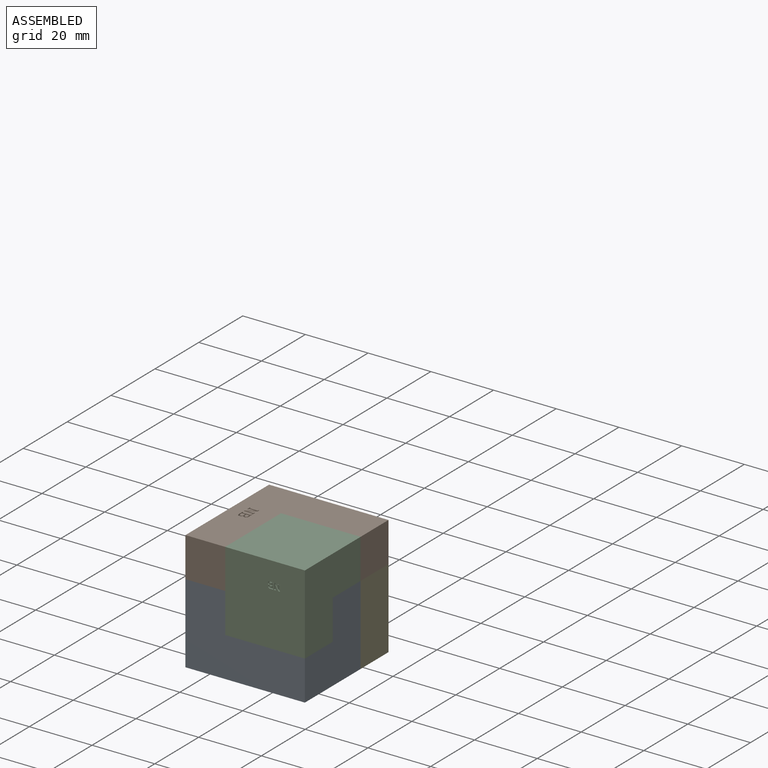
[diagram: assembled view]
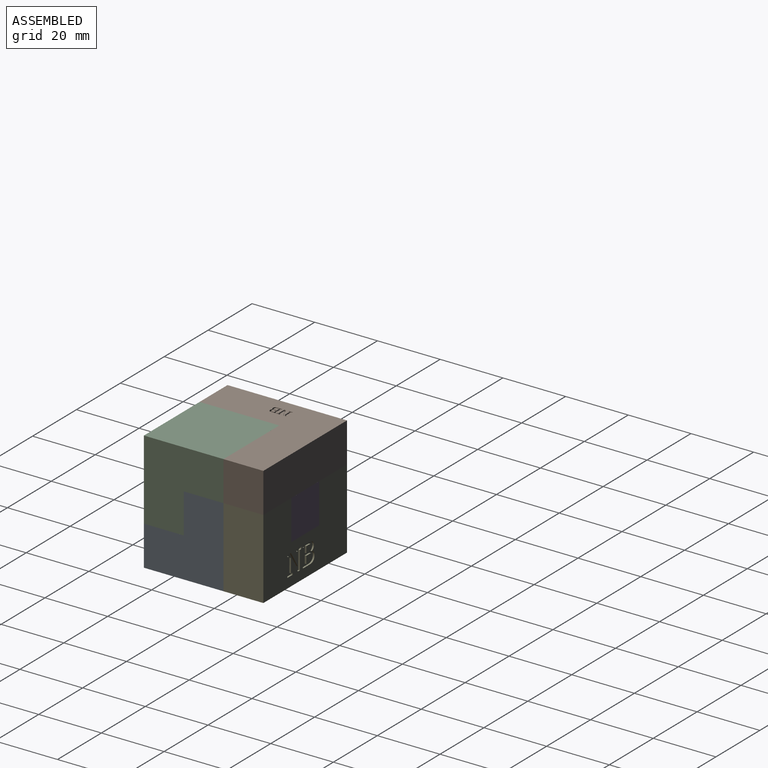
[diagram: assembled view, second angle]
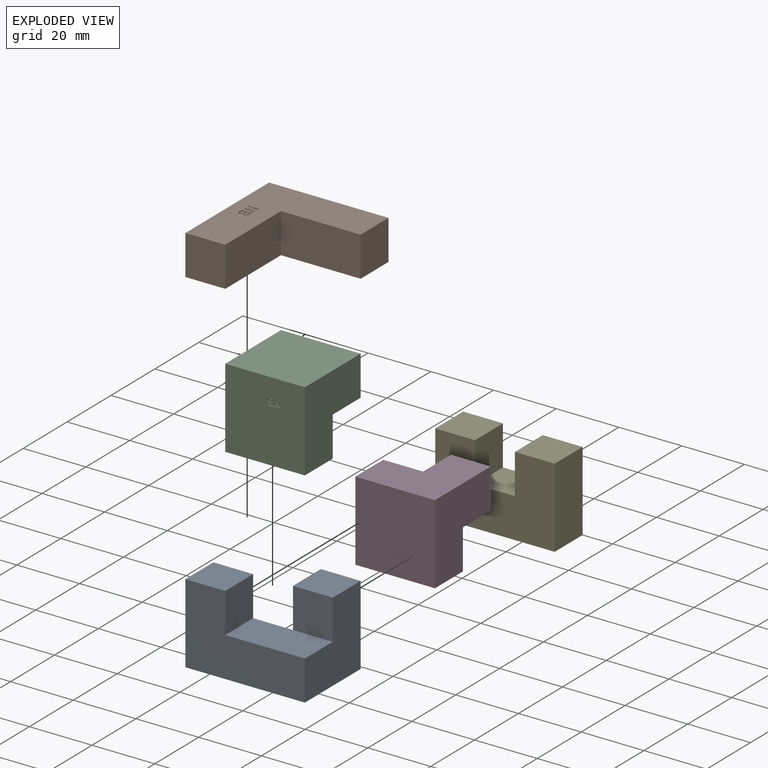
[diagram: exploded view]
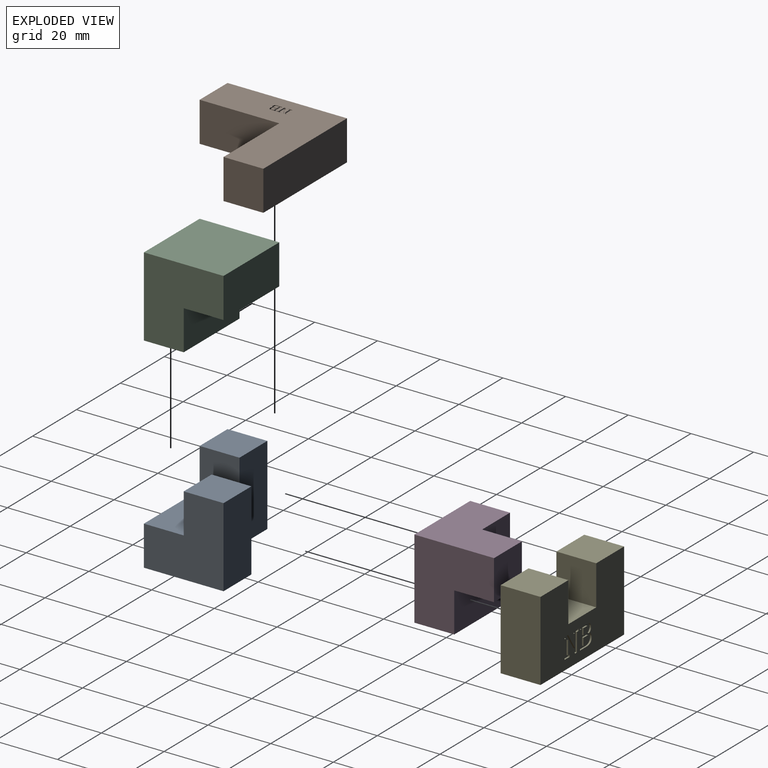
[diagram: exploded view, second angle]
ASSEMBLY  parts=5 mates=4
PART A: 67 faces, bbox 38.1x25.4x25.4 mm
  f0: plane 38.1x25.4mm, normal (0,0,-1), area 616.4mm2, adj f2,f3,f4,f5,f6,f7,f24,f25
  f1: plane 25.4x12.7mm, normal (0,0,1), area 322.6mm2, adj f2,f5,f7,f8,f10
  f2: plane 25.4x25.4mm, normal (1,0,0), area 483.9mm2, adj f0,f1,f3,f7,f10,f11
  f3: plane 25.4x12.7mm, normal (0,1,0), area 322.6mm2, adj f0,f2,f4,f11
  f4: plane 25.4x12.7mm, normal (-1,0,0), area 322.6mm2, adj f0,f3,f5,f10,f11
  f5: plane 25.4x25.4mm, normal (0,1,0), area 483.9mm2, adj f0,f1,f4,f6,f8,f9
  f6: plane 25.4x12.7mm, normal (-1,0,0), area 322.6mm2, adj f0,f5,f7,f9
  f7: plane 38.1x25.4mm, normal (0,-1,0), area 645.2mm2, adj f0,f1,f2,f6,f8,f9
  f8: plane 12.7x12.7mm, normal (1,0,0), area 161.3mm2, adj f1,f5,f7,f9
  f9: plane 12.7x12.7mm, normal (0,0,1), area 161.3mm2, adj f5,f6,f7,f8
  f10: plane 12.7x12.7mm, normal (0,-1,0), area 161.3mm2, adj f1,f2,f4,f11
  f11: plane 12.7x12.7mm, normal (0,0,1), area 161.3mm2, adj f2,f3,f4,f10
  f12: plane 1.16x0.5mm, normal (0,1,0), area 0.6mm2, adj f13,f40,f41,f66
  f13: plane 1.64x0.5mm, normal (-1,0,0), area 0.8mm2, adj f12,f14,f41,f66
  f14: plane 0.98x0.5mm, normal (0,-1,0), area 0.5mm2, adj f13,f15,f41,f66
  f15: extruded ~0.76x0.5mm, area 0.4mm2, adj f14,f16,f41,f66
  f16: extruded ~0.63x0.5mm, area 0.4mm2, adj f15,f17,f41,f66
  f17: extruded ~0.59x0.5mm, area 0.3mm2, adj f16,f40,f41,f66
  f18: plane 1.87x0.5mm, normal (-1,0,0), area 0.9mm2, adj f19,f38,f41,f42
  f19: plane 1.31x0.5mm, normal (0,-1,0), area 0.7mm2, adj f18,f20,f41,f42
  f20: extruded ~0.68x0.5mm, area 0.4mm2, adj f19,f21,f41,f42
  f21: extruded ~0.71x0.5mm, area 0.4mm2, adj f20,f22,f41,f42
  f22: extruded ~0.67x0.5mm, area 0.4mm2, adj f21,f23,f41,f42
  f23: extruded ~0.74x0.5mm, area 0.4mm2, adj f22,f38,f41,f42
  f24: extruded ~1.26x0.5mm, area 0.7mm2, adj f0,f25,f39,f41
  f25: plane 2.26x0.5mm, normal (0,1,0), area 1.1mm2, adj f0,f24,f26,f41
  f26: plane 0.5x0.45mm, normal (1,0,0), area 0.2mm2, adj f0,f25,f27,f41
  f27: plane 0.58x0.5mm, normal (0.17,-0.99,0), area 0.3mm2, adj f0,f26,f28,f41
  f28: plane 4.06x0.5mm, normal (1,0,0), area 2mm2, adj f0,f27,f29,f41
  f29: plane 0.58x0.5mm, normal (0.17,0.99,0), area 0.3mm2, adj f0,f28,f30,f41
  f30: plane 0.5x0.45mm, normal (1,0,0), area 0.2mm2, adj f0,f29,f31,f41
  f31: plane 2.48x0.5mm, normal (0,-1,0), area 1.2mm2, adj f0,f30,f32,f41
  f32: extruded ~1.25x0.5mm, area 0.7mm2, adj f0,f31,f33,f41
  f33: extruded ~1.08x0.5mm, area 0.6mm2, adj f0,f32,f34,f41
  f34: extruded ~0.83x0.5mm, area 0.4mm2, adj f0,f33,f35,f41
  f35: extruded ~0.73x0.5mm, area 0.4mm2, adj f0,f34,f36,f41
  f36: extruded ~0.58x0.5mm, area 0.4mm2, adj f0,f35,f37,f41
  f37: extruded ~0.61x0.5mm, area 0.3mm2, adj f0,f36,f39,f41
  f38: plane 1.2x0.5mm, normal (0,1,0), area 0.6mm2, adj f18,f23,f41,f42
  f39: extruded ~1.05x0.5mm, area 0.6mm2, adj f0,f24,f37,f41
  f40: extruded ~0.61x0.5mm, area 0.3mm2, adj f12,f17,f41,f66
  f41: plane 5.15x4.18mm, normal (0,0,-1), area 10.4mm2, adj f12,f13,f14,f15,f16,f17,f18,f19
  f42: plane 2.21x1.87mm, normal (0,0,-1), area 3.8mm2, adj f18,f19,f20,f21,f22,f23,f38
  f43: plane 0.5x0.45mm, normal (-1,0,0), area 0.2mm2, adj f0,f44,f64,f65
  f44: plane 1.85x0.5mm, normal (0,1,0), area 0.9mm2, adj f0,f43,f45,f65
  f45: plane 0.5x0.45mm, normal (1,0,0), area 0.2mm2, adj f0,f44,f46,f65
  f46: plane 0.58x0.5mm, normal (0.17,-0.99,0), area 0.3mm2, adj f0,f45,f47,f65
  f47: plane 3.42x0.5mm, normal (1,0,0), area 1.7mm2, adj f0,f46,f48,f65
  f48: plane 0.5x0.02mm, normal (0.3,0.95,0), area 0mm2, adj f0,f47,f49,f65
  f49: plane 3.97x2.48mm, normal (-0.85,0.53,0), area 2.3mm2, adj f0,f48,f50,f65
  f50: plane 1.27x0.5mm, normal (0,1,0), area 0.6mm2, adj f0,f49,f51,f65
  f51: plane 0.5x0.45mm, normal (1,0,0), area 0.2mm2, adj f0,f50,f52,f65
  f52: plane 0.58x0.5mm, normal (0.17,-0.99,0), area 0.3mm2, adj f0,f51,f53,f65
  f53: plane 4.06x0.5mm, normal (1,0,0), area 2mm2, adj f0,f52,f54,f65
  f54: plane 0.58x0.5mm, normal (0.17,0.99,0), area 0.3mm2, adj f0,f53,f55,f65
  f55: plane 0.5x0.45mm, normal (1,0,0), area 0.2mm2, adj f0,f54,f56,f65
  f56: plane 1.85x0.5mm, normal (0,-1,0), area 0.9mm2, adj f0,f55,f57,f65
  f57: plane 0.5x0.45mm, normal (-1,0,0), area 0.2mm2, adj f0,f56,f58,f65
  f58: plane 0.58x0.5mm, normal (-0.17,0.99,0), area 0.3mm2, adj f0,f57,f59,f65
  f59: plane 3.42x0.5mm, normal (-1,0,0), area 1.7mm2, adj f0,f58,f60,f65
  f60: plane 0.5x0.02mm, normal (-0.35,-0.94,0), area 0mm2, adj f0,f59,f61,f65
  f61: plane 3.98x2.48mm, normal (0.85,-0.53,0), area 2.3mm2, adj f0,f60,f62,f65
  f62: plane 0.7x0.5mm, normal (0,-1,0), area 0.3mm2, adj f0,f61,f63,f65
  f63: plane 4.6x0.5mm, normal (-1,0,0), area 2.3mm2, adj f0,f62,f64,f65
  f64: plane 0.58x0.5mm, normal (-0.17,-0.99,0), area 0.3mm2, adj f0,f43,f63,f65
  f65: plane 5.15x5.04mm, normal (0,0,-1), area 11.5mm2, adj f43,f44,f45,f46,f47,f48,f49,f50
  f66: plane 2x1.64mm, normal (0,0,-1), area 3mm2, adj f12,f13,f14,f15,f16,f17,f40
PART B: 63 faces, bbox 38.1x38.1x12.7 mm
  f0: plane 38.1x38.1mm, normal (0,0,1), area 796.3mm2, adj f1,f2,f3,f4,f5,f6,f20,f21
  f1: plane 25.4x12.7mm, normal (0,1,0), area 322.6mm2, adj f0,f2,f6,f7
  f2: plane 25.4x12.7mm, normal (1,0,0), area 322.6mm2, adj f0,f1,f3,f7
  f3: plane 12.7x12.7mm, normal (0,1,0), area 161.3mm2, adj f0,f2,f4,f7
  f4: plane 38.1x12.7mm, normal (-1,0,0), area 483.9mm2, adj f0,f3,f5,f7
  f5: plane 38.1x12.7mm, normal (0,-1,0), area 483.9mm2, adj f0,f4,f6,f7
  f6: plane 12.7x12.7mm, normal (1,0,0), area 161.3mm2, adj f0,f1,f5,f7
  f7: plane 38.1x38.1mm, normal (0,0,-1), area 806.5mm2, adj f1,f2,f3,f4,f5,f6
  f8: plane 0.69x0.5mm, normal (0,-1,0), area 0.3mm2, adj f9,f36,f37,f62
  f9: plane 0.98x0.5mm, normal (-1,0,0), area 0.5mm2, adj f8,f10,f37,f62
  f10: plane 0.59x0.5mm, normal (0,1,0), area 0.3mm2, adj f9,f11,f37,f62
  f11: extruded ~0.5x0.45mm, area 0.2mm2, adj f10,f12,f37,f62
  f12: extruded ~0.5x0.37mm, area 0.2mm2, adj f11,f13,f37,f62
  f13: extruded ~0.5x0.35mm, area 0.2mm2, adj f12,f36,f37,f62
  f14: plane 1.11x0.5mm, normal (-1,0,0), area 0.6mm2, adj f15,f34,f37,f38
  f15: plane 0.78x0.5mm, normal (0,1,0), area 0.4mm2, adj f14,f16,f37,f38
  f16: extruded ~0.5x0.4mm, area 0.2mm2, adj f15,f17,f37,f38
  f17: extruded ~0.5x0.42mm, area 0.2mm2, adj f16,f18,f37,f38
  f18: extruded ~0.5x0.4mm, area 0.2mm2, adj f17,f19,f37,f38
  f19: extruded ~0.5x0.44mm, area 0.2mm2, adj f18,f34,f37,f38
  f20: extruded ~0.75x0.5mm, area 0.4mm2, adj f0,f21,f35,f37
  f21: plane 1.34x0.5mm, normal (0,-1,0), area 0.7mm2, adj f0,f20,f22,f37
  f22: plane 0.5x0.27mm, normal (1,0,0), area 0.1mm2, adj f0,f21,f23,f37
  f23: plane 0.5x0.34mm, normal (0.17,0.99,0), area 0.2mm2, adj f0,f22,f24,f37
  f24: plane 2.42x0.5mm, normal (1,0,0), area 1.2mm2, adj f0,f23,f25,f37
  f25: plane 0.5x0.34mm, normal (0.17,-0.99,0), area 0.2mm2, adj f0,f24,f26,f37
  f26: plane 0.5x0.27mm, normal (1,0,0), area 0.1mm2, adj f0,f25,f27,f37
  f27: plane 1.47x0.5mm, normal (0,1,0), area 0.7mm2, adj f0,f26,f28,f37
  f28: extruded ~0.74x0.5mm, area 0.4mm2, adj f0,f27,f29,f37
  f29: extruded ~0.64x0.5mm, area 0.4mm2, adj f0,f28,f30,f37
  f30: extruded ~0.5x0.5mm, area 0.3mm2, adj f0,f29,f31,f37
  f31: extruded ~0.5x0.44mm, area 0.3mm2, adj f0,f30,f32,f37
  f32: extruded ~0.5x0.34mm, area 0.2mm2, adj f0,f31,f33,f37
  f33: extruded ~0.5x0.37mm, area 0.2mm2, adj f0,f32,f35,f37
  f34: plane 0.72x0.5mm, normal (0,-1,0), area 0.4mm2, adj f14,f19,f37,f38
  f35: extruded ~0.62x0.5mm, area 0.4mm2, adj f0,f20,f33,f37
  f36: extruded ~0.5x0.36mm, area 0.2mm2, adj f8,f13,f37,f62
  f37: plane 3.07x2.49mm, normal (0,0,1), area 3.7mm2, adj f8,f9,f10,f11,f12,f13,f14,f15
  f38: plane 1.31x1.11mm, normal (0,0,1), area 1.4mm2, adj f14,f15,f16,f17,f18,f19,f34
  f39: plane 0.5x0.27mm, normal (-1,0,0), area 0.1mm2, adj f0,f40,f60,f61
  f40: plane 1.1x0.5mm, normal (0,-1,0), area 0.6mm2, adj f0,f39,f41,f61
  f41: plane 0.5x0.27mm, normal (1,0,0), area 0.1mm2, adj f0,f40,f42,f61
  f42: plane 0.5x0.34mm, normal (0.17,0.99,0), area 0.2mm2, adj f0,f41,f43,f61
  f43: plane 2.03x0.5mm, normal (1,0,0), area 1mm2, adj f0,f42,f44,f61
  f44: plane 0.5x0.01mm, normal (0.3,-0.95,0), area 0mm2, adj f0,f43,f45,f61
  f45: plane 2.36x1.47mm, normal (-0.85,-0.53,0), area 1.4mm2, adj f0,f44,f46,f61
  f46: plane 0.76x0.5mm, normal (0,-1,0), area 0.4mm2, adj f0,f45,f47,f61
  f47: plane 0.5x0.27mm, normal (1,0,0), area 0.1mm2, adj f0,f46,f48,f61
  f48: plane 0.5x0.34mm, normal (0.17,0.99,0), area 0.2mm2, adj f0,f47,f49,f61
  f49: plane 2.42x0.5mm, normal (1,0,0), area 1.2mm2, adj f0,f48,f50,f61
  f50: plane 0.5x0.34mm, normal (0.17,-0.99,0), area 0.2mm2, adj f0,f49,f51,f61
  f51: plane 0.5x0.27mm, normal (1,0,0), area 0.1mm2, adj f0,f50,f52,f61
  f52: plane 1.1x0.5mm, normal (0,1,0), area 0.6mm2, adj f0,f51,f53,f61
  f53: plane 0.5x0.27mm, normal (-1,0,0), area 0.1mm2, adj f0,f52,f54,f61
  f54: plane 0.5x0.34mm, normal (-0.17,-0.99,0), area 0.2mm2, adj f0,f53,f55,f61
  f55: plane 2.04x0.5mm, normal (-1,0,0), area 1mm2, adj f0,f54,f56,f61
  f56: plane 0.5x0.01mm, normal (-0.35,0.94,0), area 0mm2, adj f0,f55,f57,f61
  f57: plane 2.37x1.47mm, normal (0.85,0.53,0), area 1.4mm2, adj f0,f56,f58,f61
  f58: plane 0.5x0.42mm, normal (0,1,0), area 0.2mm2, adj f0,f57,f59,f61
  f59: plane 2.74x0.5mm, normal (-1,0,0), area 1.4mm2, adj f0,f58,f60,f61
  f60: plane 0.5x0.34mm, normal (-0.17,0.99,0), area 0.2mm2, adj f0,f39,f59,f61
  f61: plane 3.07x3mm, normal (0,0,1), area 4.1mm2, adj f39,f40,f41,f42,f43,f44,f45,f46
  f62: plane 1.19x0.98mm, normal (0,0,1), area 1.1mm2, adj f8,f9,f10,f11,f12,f13,f36
PART C: 63 faces, bbox 25.4x25.4x25.4 mm
  f0: plane 25.4x25.4mm, normal (0,-1,0), area 640.8mm2, adj f2,f4,f5,f7,f20,f21,f22,f23
  f1: plane 25.4x12.7mm, normal (0,0,1), area 322.6mm2, adj f2,f3,f4,f6
  f2: plane 25.4x25.4mm, normal (1,0,0), area 483.9mm2, adj f0,f1,f3,f5,f6,f7
  f3: plane 25.4x12.7mm, normal (0,1,0), area 322.6mm2, adj f1,f2,f4,f5
  f4: plane 25.4x25.4mm, normal (-1,0,0), area 483.9mm2, adj f0,f1,f3,f5,f6,f7
  f5: plane 25.4x25.4mm, normal (0,0,-1), area 645.2mm2, adj f0,f2,f3,f4
  f6: plane 25.4x12.7mm, normal (0,1,0), area 322.6mm2, adj f1,f2,f4,f7
  f7: plane 25.4x12.7mm, normal (0,0,1), area 322.6mm2, adj f0,f2,f4,f6
  f8: plane 0.5x0.46mm, normal (0,0,-1), area 0.2mm2, adj f9,f36,f37,f62
  f9: plane 0.64x0.5mm, normal (-1,0,0), area 0.3mm2, adj f8,f10,f37,f62
  f10: plane 0.5x0.38mm, normal (0,0,1), area 0.2mm2, adj f9,f11,f37,f62
  f11: extruded ~0.5x0.3mm, area 0.2mm2, adj f10,f12,f37,f62
  f12: extruded ~0.5x0.24mm, area 0.1mm2, adj f11,f13,f37,f62
  f13: extruded ~0.5x0.23mm, area 0.1mm2, adj f12,f36,f37,f62
  f14: plane 0.73x0.5mm, normal (-1,0,0), area 0.4mm2, adj f15,f34,f37,f38
  f15: plane 0.51x0.5mm, normal (0,0,1), area 0.3mm2, adj f14,f16,f37,f38
  f16: extruded ~0.5x0.27mm, area 0.1mm2, adj f15,f17,f37,f38
  f17: extruded ~0.5x0.28mm, area 0.1mm2, adj f16,f18,f37,f38
  f18: extruded ~0.5x0.26mm, area 0.1mm2, adj f17,f19,f37,f38
  f19: extruded ~0.5x0.29mm, area 0.2mm2, adj f18,f34,f37,f38
  f20: extruded ~0.5x0.49mm, area 0.3mm2, adj f0,f21,f35,f37
  f21: plane 0.88x0.5mm, normal (0,0,-1), area 0.4mm2, adj f0,f20,f22,f37
  f22: plane 0.5x0.18mm, normal (1,0,0), area 0.1mm2, adj f0,f21,f23,f37
  f23: plane 0.5x0.23mm, normal (0.17,0,0.99), area 0.1mm2, adj f0,f22,f24,f37
  f24: plane 1.59x0.5mm, normal (1,0,0), area 0.8mm2, adj f0,f23,f25,f37
  f25: plane 0.5x0.23mm, normal (0.17,0,-0.99), area 0.1mm2, adj f0,f24,f26,f37
  f26: plane 0.5x0.17mm, normal (1,0,0), area 0.1mm2, adj f0,f25,f27,f37
  f27: plane 0.97x0.5mm, normal (0,0,1), area 0.5mm2, adj f0,f26,f28,f37
  f28: extruded ~0.5x0.49mm, area 0.3mm2, adj f0,f27,f29,f37
  f29: extruded ~0.5x0.42mm, area 0.2mm2, adj f0,f28,f30,f37
  f30: extruded ~0.5x0.33mm, area 0.2mm2, adj f0,f29,f31,f37
  f31: extruded ~0.5x0.29mm, area 0.2mm2, adj f0,f30,f32,f37
  f32: extruded ~0.5x0.23mm, area 0.1mm2, adj f0,f31,f33,f37
  f33: extruded ~0.5x0.24mm, area 0.1mm2, adj f0,f32,f35,f37
  f34: plane 0.5x0.47mm, normal (0,0,-1), area 0.2mm2, adj f14,f19,f37,f38
  f35: extruded ~0.5x0.41mm, area 0.2mm2, adj f0,f20,f33,f37
  f36: extruded ~0.5x0.24mm, area 0.1mm2, adj f8,f13,f37,f62
  f37: plane 2.01x1.64mm, normal (0,-1,0), area 1.6mm2, adj f8,f9,f10,f11,f12,f13,f14,f15
  f38: plane 0.86x0.73mm, normal (0,-1,0), area 0.6mm2, adj f14,f15,f16,f17,f18,f19,f34
  f39: plane 0.5x0.18mm, normal (-1,0,0), area 0.1mm2, adj f0,f40,f60,f61
  f40: plane 0.72x0.5mm, normal (0,0,-1), area 0.4mm2, adj f0,f39,f41,f61
  f41: plane 0.5x0.18mm, normal (1,0,0), area 0.1mm2, adj f0,f40,f42,f61
  f42: plane 0.5x0.23mm, normal (0.17,0,0.99), area 0.1mm2, adj f0,f41,f43,f61
  f43: plane 1.34x0.5mm, normal (1,0,0), area 0.7mm2, adj f0,f42,f44,f61
  f44: plane 0.5x0.01mm, normal (0.3,0,-0.95), area 0mm2, adj f0,f43,f45,f61
  f45: plane 1.55x0.97mm, normal (-0.85,0,-0.53), area 0.9mm2, adj f0,f44,f46,f61
  f46: plane 0.5x0.5mm, normal (0,0,-1), area 0.2mm2, adj f0,f45,f47,f61
  f47: plane 0.5x0.18mm, normal (1,0,0), area 0.1mm2, adj f0,f46,f48,f61
  f48: plane 0.5x0.23mm, normal (0.17,0,0.99), area 0.1mm2, adj f0,f47,f49,f61
  f49: plane 1.59x0.5mm, normal (1,0,0), area 0.8mm2, adj f0,f48,f50,f61
  f50: plane 0.5x0.23mm, normal (0.17,0,-0.99), area 0.1mm2, adj f0,f49,f51,f61
  f51: plane 0.5x0.17mm, normal (1,0,0), area 0.1mm2, adj f0,f50,f52,f61
  f52: plane 0.72x0.5mm, normal (0,0,1), area 0.4mm2, adj f0,f51,f53,f61
  f53: plane 0.5x0.17mm, normal (-1,0,0), area 0.1mm2, adj f0,f52,f54,f61
  f54: plane 0.5x0.23mm, normal (-0.17,0,-0.99), area 0.1mm2, adj f0,f53,f55,f61
  f55: plane 1.34x0.5mm, normal (-1,0,0), area 0.7mm2, adj f0,f54,f56,f61
  f56: plane 0.5x0.01mm, normal (-0.35,0,0.94), area 0mm2, adj f0,f55,f57,f61
  f57: plane 1.56x0.97mm, normal (0.85,0,0.53), area 0.9mm2, adj f0,f56,f58,f61
  f58: plane 0.5x0.27mm, normal (0,0,1), area 0.1mm2, adj f0,f57,f59,f61
  f59: plane 1.8x0.5mm, normal (-1,0,0), area 0.9mm2, adj f0,f58,f60,f61
  f60: plane 0.5x0.23mm, normal (-0.17,0,0.99), area 0.1mm2, adj f0,f39,f59,f61
  f61: plane 2.01x1.97mm, normal (0,-1,0), area 1.8mm2, adj f39,f40,f41,f42,f43,f44,f45,f46
  f62: plane 0.78x0.64mm, normal (0,-1,0), area 0.5mm2, adj f8,f9,f10,f11,f12,f13,f36
PART D: 64 faces, bbox 25.4x25.4x25.4 mm
  f0: plane 25.4x12.7mm, normal (-1,0,0), area 275.2mm2, adj f1,f3,f4,f5,f21,f22,f23,f24
  f1: plane 25.4x12.7mm, normal (0,-1,0), area 322.6mm2, adj f0,f2,f4,f5
  f2: plane 25.4x25.4mm, normal (1,0,0), area 483.9mm2, adj f1,f3,f4,f5,f6,f8
  f3: plane 25.4x25.4mm, normal (0,1,0), area 483.9mm2, adj f0,f2,f4,f5,f7,f8
  f4: plane 25.4x25.4mm, normal (0,0,1), area 645.2mm2, adj f0,f1,f2,f3
  f5: plane 25.4x25.4mm, normal (0,0,-1), area 483.9mm2, adj f0,f1,f2,f3,f6,f7
  f6: plane 12.7x12.7mm, normal (0,-1,0), area 161.3mm2, adj f2,f5,f7,f8
  f7: plane 12.7x12.7mm, normal (-1,0,0), area 161.3mm2, adj f3,f5,f6,f8
  f8: plane 12.7x12.7mm, normal (0,0,-1), area 161.3mm2, adj f2,f3,f6,f7
  f9: plane 1.49x0.5mm, normal (0,0,-1), area 0.7mm2, adj f10,f37,f38,f63
  f10: plane 2.11x0.5mm, normal (0,1,0), area 1.1mm2, adj f9,f11,f38,f63
  f11: plane 1.26x0.5mm, normal (0,0,1), area 0.6mm2, adj f10,f12,f38,f63
  f12: extruded ~0.97x0.5mm, area 0.5mm2, adj f11,f13,f38,f63
  f13: extruded ~0.8x0.5mm, area 0.5mm2, adj f12,f14,f38,f63
  f14: extruded ~0.75x0.5mm, area 0.4mm2, adj f13,f37,f38,f63
  f15: plane 2.4x0.5mm, normal (0,1,0), area 1.2mm2, adj f16,f35,f38,f39
  f16: plane 1.68x0.5mm, normal (0,0,1), area 0.8mm2, adj f15,f17,f38,f39
  f17: extruded ~0.87x0.5mm, area 0.5mm2, adj f16,f18,f38,f39
  f18: extruded ~0.91x0.5mm, area 0.5mm2, adj f17,f19,f38,f39
  f19: extruded ~0.86x0.5mm, area 0.5mm2, adj f18,f20,f38,f39
  f20: extruded ~0.95x0.5mm, area 0.5mm2, adj f19,f35,f38,f39
  f21: extruded ~1.62x0.5mm, area 0.9mm2, adj f0,f22,f36,f38
  f22: plane 2.9x0.5mm, normal (0,0,-1), area 1.4mm2, adj f0,f21,f23,f38
  f23: plane 0.58x0.5mm, normal (0,-1,0), area 0.3mm2, adj f0,f22,f24,f38
  f24: plane 0.74x0.5mm, normal (0,-0.17,0.99), area 0.4mm2, adj f0,f23,f25,f38
  f25: plane 5.21x0.5mm, normal (0,-1,0), area 2.6mm2, adj f0,f24,f26,f38
  f26: plane 0.74x0.5mm, normal (0,-0.17,-0.99), area 0.4mm2, adj f0,f25,f27,f38
  f27: plane 0.57x0.5mm, normal (0,-1,0), area 0.3mm2, adj f0,f26,f28,f38
  f28: plane 3.18x0.5mm, normal (0,0,1), area 1.6mm2, adj f0,f27,f29,f38
  f29: extruded ~1.6x0.5mm, area 0.9mm2, adj f0,f28,f30,f38
  f30: extruded ~1.39x0.59mm, area 0.8mm2, adj f0,f29,f31,f38
  f31: extruded ~1.07x0.5mm, area 0.6mm2, adj f0,f30,f32,f38
  f32: extruded ~0.94x0.59mm, area 0.6mm2, adj f0,f31,f33,f38
  f33: extruded ~0.74x0.52mm, area 0.5mm2, adj f0,f32,f34,f38
  f34: extruded ~0.79x0.5mm, area 0.4mm2, adj f0,f33,f36,f38
  f35: plane 1.54x0.5mm, normal (0,0,-1), area 0.8mm2, adj f15,f20,f38,f39
  f36: extruded ~1.34x0.58mm, area 0.8mm2, adj f0,f21,f34,f38
  f37: extruded ~0.78x0.5mm, area 0.4mm2, adj f9,f14,f38,f63
  f38: plane 6.61x5.37mm, normal (-1,0,0), area 17.2mm2, adj f9,f10,f11,f12,f13,f14,f15,f16
  f39: plane 2.83x2.4mm, normal (-1,0,0), area 6.3mm2, adj f15,f16,f17,f18,f19,f20,f35
  f40: plane 0.58x0.5mm, normal (0,1,0), area 0.3mm2, adj f0,f41,f61,f62
  f41: plane 2.38x0.5mm, normal (0,0,-1), area 1.2mm2, adj f0,f40,f42,f62
  f42: plane 0.58x0.5mm, normal (0,-1,0), area 0.3mm2, adj f0,f41,f43,f62
  f43: plane 0.74x0.5mm, normal (0,-0.17,0.99), area 0.4mm2, adj f0,f42,f44,f62
  f44: plane 4.39x0.5mm, normal (0,-1,0), area 2.2mm2, adj f0,f43,f45,f62
  f45: plane 0.5x0.03mm, normal (0,-0.3,-0.95), area 0mm2, adj f0,f44,f46,f62
  f46: plane 5.1x3.18mm, normal (0,0.85,-0.53), area 3mm2, adj f0,f45,f47,f62
  f47: plane 1.64x0.5mm, normal (0,0,-1), area 0.8mm2, adj f0,f46,f48,f62
  f48: plane 0.58x0.5mm, normal (0,-1,0), area 0.3mm2, adj f0,f47,f49,f62
  f49: plane 0.74x0.5mm, normal (0,-0.17,0.99), area 0.4mm2, adj f0,f48,f50,f62
  f50: plane 5.21x0.5mm, normal (0,-1,0), area 2.6mm2, adj f0,f49,f51,f62
  f51: plane 0.74x0.5mm, normal (0,-0.17,-0.99), area 0.4mm2, adj f0,f50,f52,f62
  f52: plane 0.57x0.5mm, normal (0,-1,0), area 0.3mm2, adj f0,f51,f53,f62
  f53: plane 2.38x0.5mm, normal (0,0,1), area 1.2mm2, adj f0,f52,f54,f62
  f54: plane 0.57x0.5mm, normal (0,1,0), area 0.3mm2, adj f0,f53,f55,f62
  f55: plane 0.74x0.5mm, normal (0,0.17,-0.99), area 0.4mm2, adj f0,f54,f56,f62
  f56: plane 4.4x0.5mm, normal (0,1,0), area 2.2mm2, adj f0,f55,f57,f62
  f57: plane 0.5x0.03mm, normal (0,0.35,0.94), area 0mm2, adj f0,f56,f58,f62
  f58: plane 5.11x3.18mm, normal (0,-0.85,0.53), area 3mm2, adj f0,f57,f59,f62
  f59: plane 0.9x0.5mm, normal (0,0,1), area 0.4mm2, adj f0,f58,f60,f62
  f60: plane 5.91x0.5mm, normal (0,1,0), area 3mm2, adj f0,f59,f61,f62
  f61: plane 0.74x0.5mm, normal (0,0.17,0.99), area 0.4mm2, adj f0,f40,f60,f62
  f62: plane 6.61x6.48mm, normal (-1,0,0), area 18.9mm2, adj f40,f41,f42,f43,f44,f45,f46,f47
  f63: plane 2.57x2.11mm, normal (-1,0,0), area 5mm2, adj f9,f10,f11,f12,f13,f14,f37
PART E: 65 faces, bbox 38.1x12.7x25.4 mm
  f0: plane 38.1x25.4mm, normal (0,1,0), area 760mm2, adj f1,f2,f3,f5,f6,f7,f8,f9
  f1: plane 12.7x12.7mm, normal (0,0,1), area 161.3mm2, adj f0,f4,f6,f8
  f2: plane 25.4x12.7mm, normal (1,0,0), area 322.6mm2, adj f0,f4,f5,f9
  f3: plane 25.4x12.7mm, normal (-1,0,0), area 322.6mm2, adj f0,f4,f5,f7
  f4: plane 38.1x25.4mm, normal (0,-1,0), area 806.5mm2, adj f1,f2,f3,f5,f6,f7,f8,f9
  f5: plane 38.1x12.7mm, normal (0,0,-1), area 483.9mm2, adj f0,f2,f3,f4
  f6: plane 12.7x12.7mm, normal (1,0,0), area 161.3mm2, adj f0,f1,f4,f7
  f7: plane 12.7x12.7mm, normal (0,0,1), area 161.3mm2, adj f0,f3,f4,f6
  f8: plane 12.7x12.7mm, normal (-1,0,0), area 161.3mm2, adj f0,f1,f4,f9
  f9: plane 12.7x12.7mm, normal (0,0,1), area 161.3mm2, adj f0,f2,f4,f8
  f10: plane 1.48x0.5mm, normal (0,0,-1), area 0.7mm2, adj f11,f38,f39,f64
  f11: plane 2.09x0.5mm, normal (1,0,0), area 1mm2, adj f10,f12,f39,f64
  f12: plane 1.25x0.5mm, normal (0,0,1), area 0.6mm2, adj f11,f13,f39,f64
  f13: extruded ~0.96x0.5mm, area 0.5mm2, adj f12,f14,f39,f64
  f14: extruded ~0.8x0.5mm, area 0.4mm2, adj f13,f15,f39,f64
  f15: extruded ~0.75x0.5mm, area 0.4mm2, adj f14,f38,f39,f64
  f16: plane 2.38x0.5mm, normal (1,0,0), area 1.2mm2, adj f17,f36,f39,f40
  f17: plane 1.67x0.5mm, normal (0,0,1), area 0.8mm2, adj f16,f18,f39,f40
  f18: extruded ~0.86x0.5mm, area 0.5mm2, adj f17,f19,f39,f40
  f19: extruded ~0.9x0.5mm, area 0.5mm2, adj f18,f20,f39,f40
  f20: extruded ~0.85x0.5mm, area 0.5mm2, adj f19,f21,f39,f40
  f21: extruded ~0.94x0.5mm, area 0.5mm2, adj f20,f36,f39,f40
  f22: extruded ~1.6x0.5mm, area 0.8mm2, adj f0,f23,f37,f39
  f23: plane 2.87x0.5mm, normal (0,0,-1), area 1.4mm2, adj f0,f22,f24,f39
  f24: plane 0.57x0.5mm, normal (-1,0,0), area 0.3mm2, adj f0,f23,f25,f39
  f25: plane 0.73x0.5mm, normal (-0.17,0,0.99), area 0.4mm2, adj f0,f24,f26,f39
  f26: plane 5.16x0.5mm, normal (-1,0,0), area 2.6mm2, adj f0,f25,f27,f39
  f27: plane 0.73x0.5mm, normal (-0.17,0,-0.99), area 0.4mm2, adj f0,f26,f28,f39
  f28: plane 0.57x0.5mm, normal (-1,0,0), area 0.3mm2, adj f0,f27,f29,f39
  f29: plane 3.15x0.5mm, normal (0,0,1), area 1.6mm2, adj f0,f28,f30,f39
  f30: extruded ~1.59x0.5mm, area 0.8mm2, adj f0,f29,f31,f39
  f31: extruded ~1.37x0.59mm, area 0.8mm2, adj f0,f30,f32,f39
  f32: extruded ~1.06x0.5mm, area 0.6mm2, adj f0,f31,f33,f39
  f33: extruded ~0.93x0.58mm, area 0.6mm2, adj f0,f32,f34,f39
  f34: extruded ~0.73x0.51mm, area 0.5mm2, adj f0,f33,f35,f39
  f35: extruded ~0.78x0.5mm, area 0.4mm2, adj f0,f34,f37,f39
  f36: plane 1.53x0.5mm, normal (0,0,-1), area 0.8mm2, adj f16,f21,f39,f40
  f37: extruded ~1.33x0.58mm, area 0.8mm2, adj f0,f22,f35,f39
  f38: extruded ~0.77x0.5mm, area 0.4mm2, adj f10,f15,f39,f64
  f39: plane 6.55x5.32mm, normal (0,1,0), area 16.9mm2, adj f10,f11,f12,f13,f14,f15,f16,f17
  f40: plane 2.81x2.38mm, normal (0,1,0), area 6.2mm2, adj f16,f17,f18,f19,f20,f21,f36
  f41: plane 0.57x0.5mm, normal (1,0,0), area 0.3mm2, adj f0,f42,f62,f63
  f42: plane 2.35x0.5mm, normal (0,0,-1), area 1.2mm2, adj f0,f41,f43,f63
  f43: plane 0.57x0.5mm, normal (-1,0,0), area 0.3mm2, adj f0,f42,f44,f63
  f44: plane 0.73x0.5mm, normal (-0.17,0,0.99), area 0.4mm2, adj f0,f43,f45,f63
  f45: plane 4.35x0.5mm, normal (-1,0,0), area 2.2mm2, adj f0,f44,f46,f63
  f46: plane 0.5x0.03mm, normal (-0.3,0,-0.95), area 0mm2, adj f0,f45,f47,f63
  f47: plane 5.05x3.15mm, normal (0.85,0,-0.53), area 3mm2, adj f0,f46,f48,f63
  f48: plane 1.62x0.5mm, normal (0,0,-1), area 0.8mm2, adj f0,f47,f49,f63
  f49: plane 0.57x0.5mm, normal (-1,0,0), area 0.3mm2, adj f0,f48,f50,f63
  f50: plane 0.73x0.5mm, normal (-0.17,0,0.99), area 0.4mm2, adj f0,f49,f51,f63
  f51: plane 5.16x0.5mm, normal (-1,0,0), area 2.6mm2, adj f0,f50,f52,f63
  f52: plane 0.73x0.5mm, normal (-0.17,0,-0.99), area 0.4mm2, adj f0,f51,f53,f63
  f53: plane 0.57x0.5mm, normal (-1,0,0), area 0.3mm2, adj f0,f52,f54,f63
  f54: plane 2.35x0.5mm, normal (0,0,1), area 1.2mm2, adj f0,f53,f55,f63
  f55: plane 0.57x0.5mm, normal (1,0,0), area 0.3mm2, adj f0,f54,f56,f63
  f56: plane 0.73x0.5mm, normal (0.17,0,-0.99), area 0.4mm2, adj f0,f55,f57,f63
  f57: plane 4.36x0.5mm, normal (1,0,0), area 2.2mm2, adj f0,f56,f58,f63
  f58: plane 0.5x0.03mm, normal (0.35,0,0.94), area 0mm2, adj f0,f57,f59,f63
  f59: plane 5.06x3.15mm, normal (-0.85,0,0.53), area 3mm2, adj f0,f58,f60,f63
  f60: plane 0.89x0.5mm, normal (0,0,1), area 0.4mm2, adj f0,f59,f61,f63
  f61: plane 5.86x0.5mm, normal (1,0,0), area 2.9mm2, adj f0,f60,f62,f63
  f62: plane 0.73x0.5mm, normal (0.17,0,0.99), area 0.4mm2, adj f0,f41,f61,f63
  f63: plane 6.55x6.42mm, normal (0,1,0), area 18.6mm2, adj f41,f42,f43,f44,f45,f46,f47,f48
  f64: plane 2.55x2.09mm, normal (0,1,0), area 4.9mm2, adj f10,f11,f12,f13,f14,f15,f38
PLACE A t=(11.68,-22.87,-59.68)mm
PLACE B rot(axis=(0,0,-1),90deg) t=(-13.72,-48.27,-34.28)mm
PLACE C rot(axis=(0,1,0),180deg) t=(-13.72,-48.27,-21.58)mm
PLACE D rot(axis=(1,0,0),90deg) t=(-1.02,-22.87,-59.68)mm
PLACE E t=(11.68,-10.17,-59.68)mm
MATE fastened D.f4 <-> A.f5  axis (0,-1,0) through (-26.42,-35.57,-59.68)mm
MATE fastened E.f4 <-> D.f5  axis (0,-1,0) through (-26.42,-22.87,-59.68)mm
MATE fastened C.f7 <-> A.f1  axis (0,0,-1) through (11.68,-48.27,-46.98)mm
MATE fastened B.f7 <-> E.f7  axis (0,0,-1) through (-26.42,-10.17,-34.28)mm
